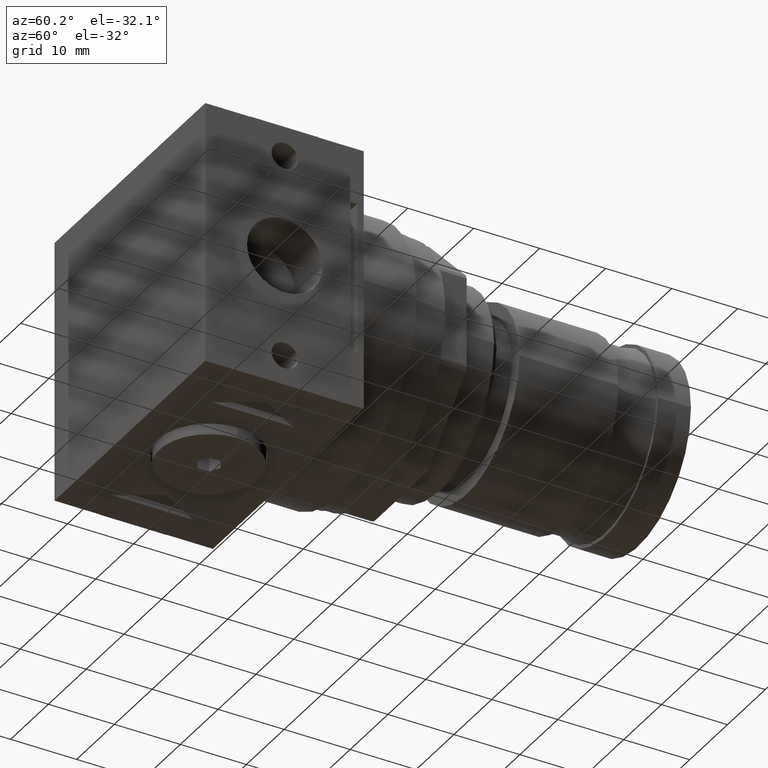
[diagram: clean part render]
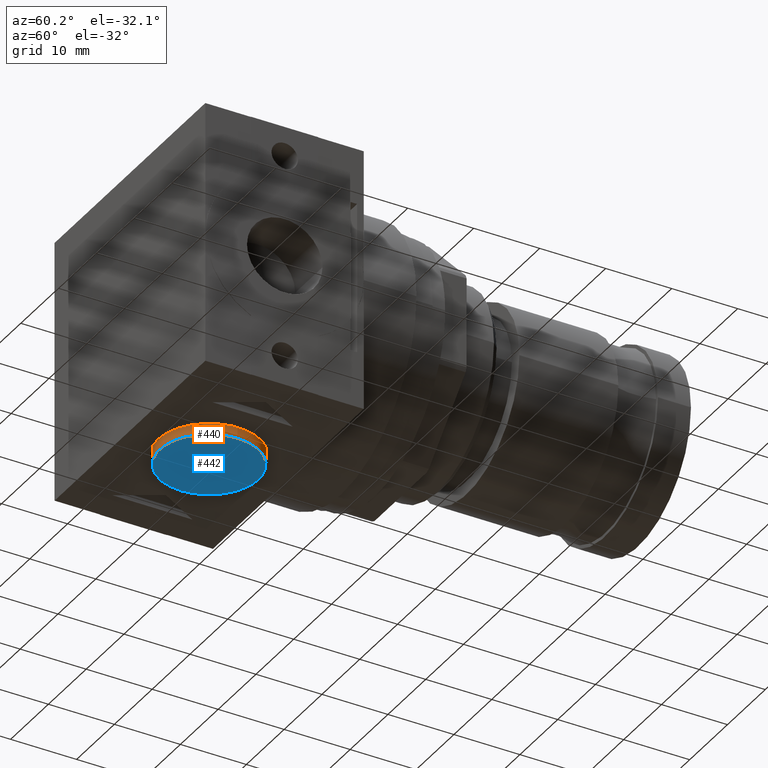
[diagram: same view with the hole feature highlighted: cylindrical wall and planar end face, labeled with their STEP entity ids]
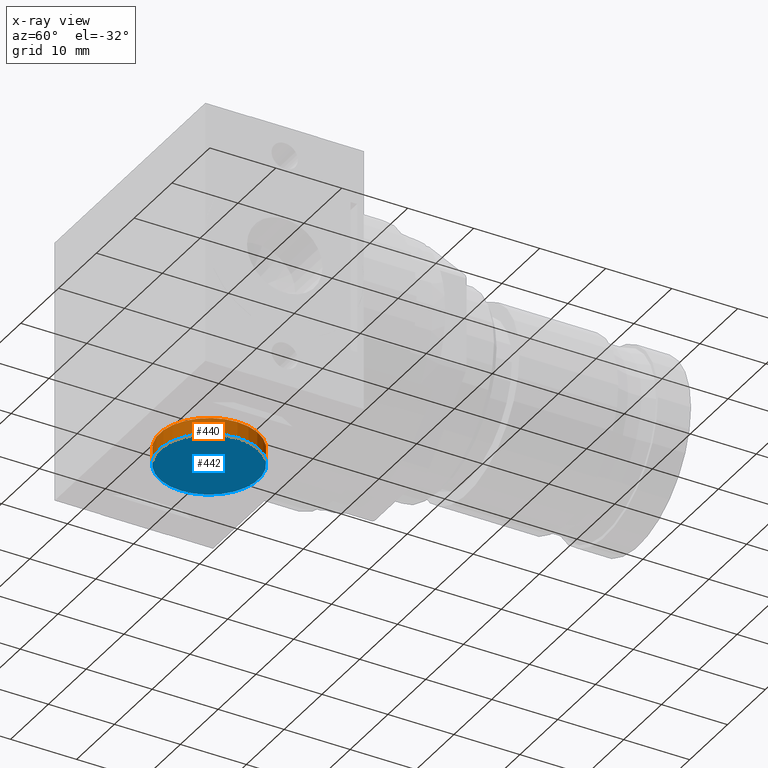
[diagram: x-ray of the same camera — body ghosted, the hole faces saturated]
A machine part, auxiliary view. The highlighted faces form one hole feature of diameter 15 mm: the cylindrical wall (entity #440, orange) and its adjacent planar end face (entity #442, blue) — they share a circular edge in the B-rep.
The next image is the same camera in x-ray (body ghosted, the hole faces saturated) — the bore reads through the body.
Wall:
#440 = ADVANCED_FACE( '', ( #892, #893 ), #894, .T. );
#892 = FACE_OUTER_BOUND( '', #1337, .T. );
#893 = FACE_OUTER_BOUND( '', #1338, .T. );
#894 = CYLINDRICAL_SURFACE( '', #1339, 7.50000000000000 );
#1337 = EDGE_LOOP( '', ( #2311 ) );
#1338 = EDGE_LOOP( '', ( #2312 ) );
#1339 = AXIS2_PLACEMENT_3D( '', #2313, #2314, #2315 );
#2311 = ORIENTED_EDGE( '', *, *, #2497, .F. );
#2312 = ORIENTED_EDGE( '', *, *, #2798, .T. );
#2313 = CARTESIAN_POINT( '', ( 7.00000000000000, 0.000000000000000, 0.000000000000000 ) );
#2314 = DIRECTION( '', ( -1.00000000000000, -0.000000000000000, 0.000000000000000 ) );
#2315 = DIRECTION( '', ( -0.000000000000000, 0.000000000000000, -1.00000000000000 ) );
#2497 = EDGE_CURVE( '', #2944, #2944, #2945, .T. );
#2798 = EDGE_CURVE( '', #3369, #3369, #3370, .T. );
#2944 = VERTEX_POINT( '', #3565 );
#2945 = CIRCLE( '', #3566, 7.50000000000000 );
#3369 = VERTEX_POINT( '', #4123 );
#3370 = CIRCLE( '', #4124, 7.50000000000000 );
#3565 = CARTESIAN_POINT( '', ( 0.000000000000000, 0.000000000000000, -7.50000000000000 ) );
#3566 = AXIS2_PLACEMENT_3D( '', #4219, #4220, #4221 );
#4123 = CARTESIAN_POINT( '', ( -2.50000000000000, 0.000000000000000, -7.50000000000000 ) );
#4124 = AXIS2_PLACEMENT_3D( '', #4553, #4554, #4555 );
#4219 = CARTESIAN_POINT( '', ( 0.000000000000000, 0.000000000000000, 0.000000000000000 ) );
#4220 = DIRECTION( '', ( 1.00000000000000, 0.000000000000000, -0.000000000000000 ) );
#4221 = DIRECTION( '', ( -0.000000000000000, 0.000000000000000, -1.00000000000000 ) );
#4553 = CARTESIAN_POINT( '', ( -2.50000000000000, 0.000000000000000, 0.000000000000000 ) );
#4554 = DIRECTION( '', ( 1.00000000000000, 0.000000000000000, -0.000000000000000 ) );
#4555 = DIRECTION( '', ( -0.000000000000000, 0.000000000000000, -1.00000000000000 ) );
End face:
#442 = ADVANCED_FACE( '', ( #896, #897 ), #898, .F. );
#896 = FACE_OUTER_BOUND( '', #1341, .T. );
#897 = FACE_BOUND( '', #1342, .T. );
#898 = PLANE( '', #1343 );
#1341 = EDGE_LOOP( '', ( #2317 ) );
#1342 = EDGE_LOOP( '', ( #2318, #2319, #2320, #2321, #2322, #2323 ) );
#1343 = AXIS2_PLACEMENT_3D( '', #2324, #2325, #2326 );
#2317 = ORIENTED_EDGE( '', *, *, #2798, .F. );
#2318 = ORIENTED_EDGE( '', *, *, #2421, .F. );
#2319 = ORIENTED_EDGE( '', *, *, #2679, .F. );
#2320 = ORIENTED_EDGE( '', *, *, #2540, .F. );
#2321 = ORIENTED_EDGE( '', *, *, #2763, .F. );
#2322 = ORIENTED_EDGE( '', *, *, #2563, .F. );
#2323 = ORIENTED_EDGE( '', *, *, #2676, .F. );
#2324 = CARTESIAN_POINT( '', ( -2.50000000000000, 0.000000000000000, 0.000000000000000 ) );
#2325 = DIRECTION( '', ( 1.00000000000000, 0.000000000000000, -0.000000000000000 ) );
#2326 = DIRECTION( '', ( -0.000000000000000, 0.000000000000000, -1.00000000000000 ) );
#2421 = EDGE_CURVE( '', #2814, #2815, #2816, .T. );
#2540 = EDGE_CURVE( '', #3012, #3013, #3014, .T. );
#2563 = EDGE_CURVE( '', #3050, #3051, #3052, .T. );
#2676 = EDGE_CURVE( '', #2815, #3050, #3223, .T. );
#2679 = EDGE_CURVE( '', #3013, #2814, #3226, .T. );
#2763 = EDGE_CURVE( '', #3051, #3012, #3332, .T. );
#2798 = EDGE_CURVE( '', #3369, #3369, #3370, .T. );
#2814 = VERTEX_POINT( '', #3387 );
#2815 = VERTEX_POINT( '', #3388 );
#2816 = LINE( '', #3389, #3390 );
#3012 = VERTEX_POINT( '', #3647 );
#3013 = VERTEX_POINT( '', #3648 );
#3014 = LINE( '', #3649, #3650 );
#3050 = VERTEX_POINT( '', #3698 );
#3051 = VERTEX_POINT( '', #3699 );
#3052 = LINE( '', #3700, #3701 );
#3223 = LINE( '', #3921, #3922 );
#3226 = LINE( '', #3926, #3927 );
#3332 = LINE( '', #4073, #4074 );
#3369 = VERTEX_POINT( '', #4123 );
#3370 = CIRCLE( '', #4124, 7.50000000000000 );
#3387 = CARTESIAN_POINT( '', ( -2.50000000000000, -1.73205080756888, -2.22044604925031E-016 ) );
#3388 = CARTESIAN_POINT( '', ( -2.50000000000000, -0.866025403784439, 1.50000000000000 ) );
#3389 = CARTESIAN_POINT( '', ( -2.50000000000000, -1.73205080756888, -2.22044604925031E-016 ) );
#3390 = VECTOR( '', #4141, 1000.00000000000 );
#3647 = CARTESIAN_POINT( '', ( -2.50000000000000, 0.866025403784439, -1.50000000000000 ) );
#3648 = CARTESIAN_POINT( '', ( -2.50000000000000, -0.866025403784438, -1.50000000000000 ) );
#3649 = CARTESIAN_POINT( '', ( -2.50000000000000, 0.866025403784439, -1.50000000000000 ) );
#3650 = VECTOR( '', #4281, 1000.00000000000 );
#3698 = CARTESIAN_POINT( '', ( -2.50000000000000, 0.866025403784438, 1.50000000000000 ) );
#3699 = CARTESIAN_POINT( '', ( -2.50000000000000, 1.73205080756888, 2.16840434497101E-016 ) );
#3700 = CARTESIAN_POINT( '', ( -2.50000000000000, 0.866025403784438, 1.50000000000000 ) );
#3701 = VECTOR( '', #4303, 1000.00000000000 );
#3921 = CARTESIAN_POINT( '', ( -2.50000000000000, -0.866025403784439, 1.50000000000000 ) );
#3922 = VECTOR( '', #4452, 1000.00000000000 );
#3926 = CARTESIAN_POINT( '', ( -2.50000000000000, -0.866025403784438, -1.50000000000000 ) );
#3927 = VECTOR( '', #4454, 1000.00000000000 );
#4073 = CARTESIAN_POINT( '', ( -2.50000000000000, 1.73205080756888, 2.22044604925031E-016 ) );
#4074 = VECTOR( '', #4528, 1000.00000000000 );
#4123 = CARTESIAN_POINT( '', ( -2.50000000000000, 0.000000000000000, -7.50000000000000 ) );
#4124 = AXIS2_PLACEMENT_3D( '', #4553, #4554, #4555 );
#4141 = DIRECTION( '', ( 0.000000000000000, 0.500000000000000, 0.866025403784439 ) );
#4281 = DIRECTION( '', ( 0.000000000000000, -1.00000000000000, 0.000000000000000 ) );
#4303 = DIRECTION( '', ( 0.000000000000000, 0.500000000000000, -0.866025403784439 ) );
#4452 = DIRECTION( '', ( 0.000000000000000, 1.00000000000000, 0.000000000000000 ) );
#4454 = DIRECTION( '', ( 0.000000000000000, -0.500000000000000, 0.866025403784439 ) );
#4528 = DIRECTION( '', ( 0.000000000000000, -0.500000000000000, -0.866025403784439 ) );
#4553 = CARTESIAN_POINT( '', ( -2.50000000000000, 0.000000000000000, 0.000000000000000 ) );
#4554 = DIRECTION( '', ( 1.00000000000000, 0.000000000000000, -0.000000000000000 ) );
#4555 = DIRECTION( '', ( -0.000000000000000, 0.000000000000000, -1.00000000000000 ) );